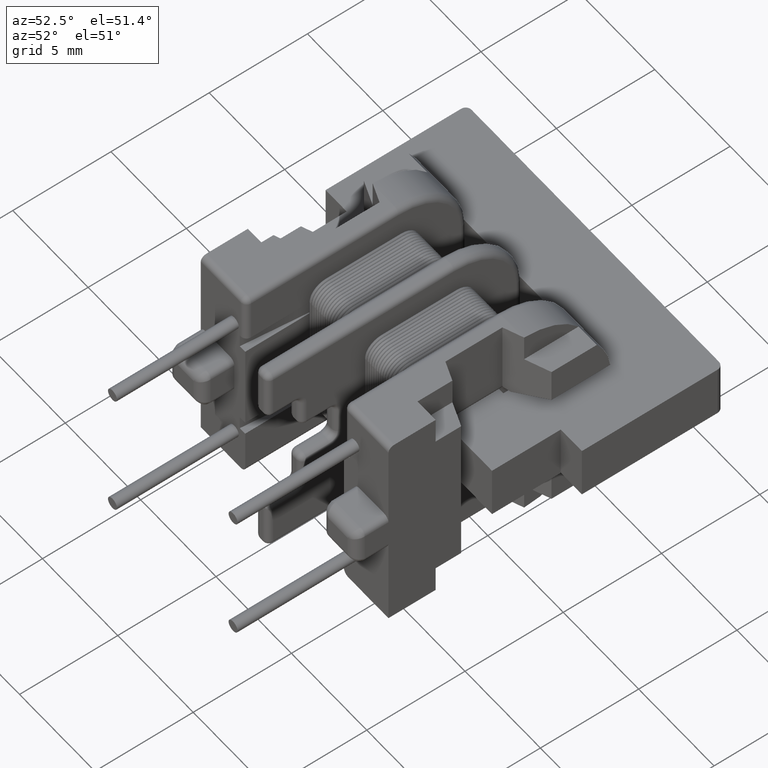
[diagram: clean part render]
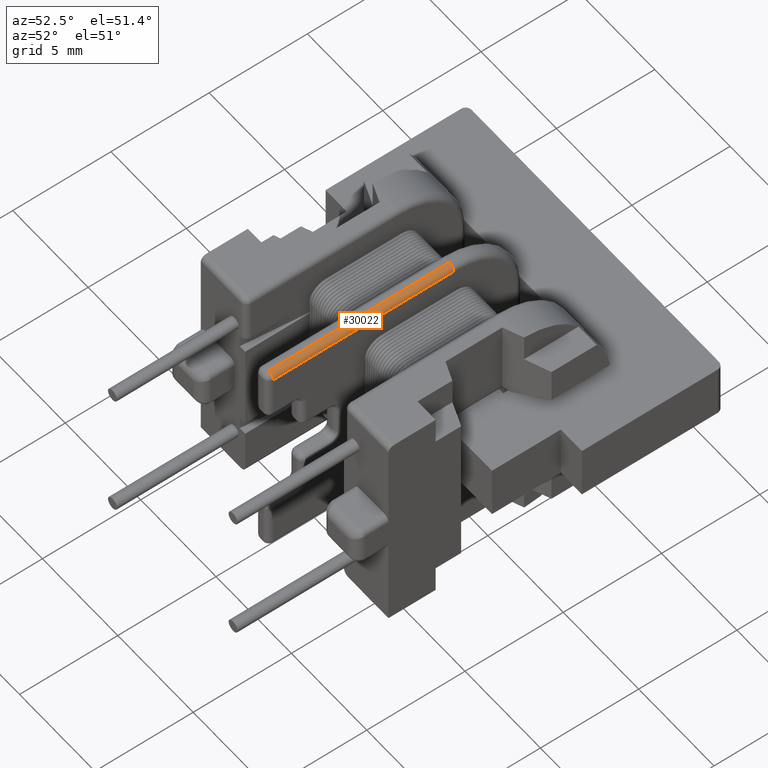
[diagram: same view with one face highlighted and labeled with its STEP entity id]
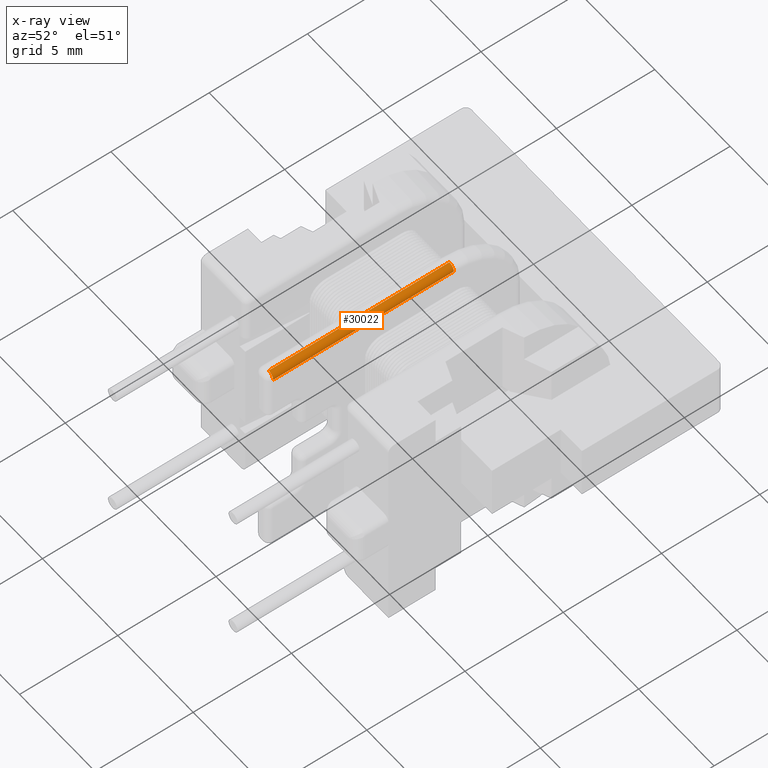
[diagram: x-ray of the same camera — body ghosted, the highlighted face saturated]
A machine part, auxiliary view. The second image highlights one B-rep face of the part: STEP entity #30022.
The next image is the same camera in x-ray: the body ghosted, the highlighted face saturated — about 0% of this face is hidden behind the body in this view.
In plain terms, the highlighted cylindrical surface (edge-blend (fillet) strip) has radius 0.3 mm, axis along (-0, 1, 0).
Its self-contained STEP definition (entity closure, byte-faithful):
#1444 = ORIENTED_EDGE ( 'NONE', *, *, #31955, .F. ) ;
#1467 = VERTEX_POINT ( 'NONE', #2672 ) ;
#2672 = CARTESIAN_POINT ( 'NONE',  ( 0.1000000000000000472, -7.399999999999999467, 5.499999999999997335 ) ) ;
#3893 = EDGE_CURVE ( 'NONE', #33738, #35253, #38652, .T. ) ;
#4317 = CARTESIAN_POINT ( 'NONE',  ( 0.1000000000000000472, 1.800000000000000044, 5.199999999999998401 ) ) ;
#4455 = DIRECTION ( 'NONE',  ( 0.0000000000000000000, 1.000000000000000000, 0.0000000000000000000 ) ) ;
#4801 = ORIENTED_EDGE ( 'NONE', *, *, #23649, .T. ) ;
#5025 = DIRECTION ( 'NONE',  ( 0.0000000000000000000, 1.000000000000000000, -2.891205793294679805E-15 ) ) ;
#5520 = CARTESIAN_POINT ( 'NONE',  ( 0.4000000000000000222, -7.400000000000000355, 5.199999999999997513 ) ) ;
#6828 = CYLINDRICAL_SURFACE ( 'NONE', #10149, 0.2999999999999999334 ) ;
#8553 = CARTESIAN_POINT ( 'NONE',  ( 0.1000000000000000472, 1.800000000000000044, 5.499999999999998224 ) ) ;
#10149 = AXIS2_PLACEMENT_3D ( 'NONE', #17569, #18676, #36352 ) ;
#10347 = DIRECTION ( 'NONE',  ( 0.0000000000000000000, 0.0000000000000000000, 1.000000000000000000 ) ) ;
#11214 = VECTOR ( 'NONE', #11821, 1000.000000000000000 ) ;
#11821 = DIRECTION ( 'NONE',  ( -0.0000000000000000000, 1.000000000000000000, 1.495451272393799542E-16 ) ) ;
#13174 = AXIS2_PLACEMENT_3D ( 'NONE', #4317, #4455, #10347 ) ;
#13244 = EDGE_LOOP ( 'NONE', ( #4801, #1444, #17399, #25990 ) ) ;
#17399 = ORIENTED_EDGE ( 'NONE', *, *, #3893, .F. ) ;
#17559 = DIRECTION ( 'NONE',  ( 0.0000000000000000000, -1.000000000000000000, -1.495451272393799542E-16 ) ) ;
#17569 = CARTESIAN_POINT ( 'NONE',  ( 0.1000000000000000472, -7.776346616447755056E-16, 5.199999999999998401 ) ) ;
#17998 = CIRCLE ( 'NONE', #32959, 0.2999999999999999334 ) ;
#18676 = DIRECTION ( 'NONE',  ( -0.0000000000000000000, 1.000000000000000000, 1.495451272393799542E-16 ) ) ;
#19572 = LINE ( 'NONE', #8553, #11214 ) ;
#20766 = CARTESIAN_POINT ( 'NONE',  ( 0.4000000000000000222, 1.800000000000000044, 5.199999999999999289 ) ) ;
#23447 = DIRECTION ( 'NONE',  ( 0.0000000000000000000, 2.891205793294679017E-15, 1.000000000000000000 ) ) ;
#23474 = LINE ( 'NONE', #35318, #38040 ) ;
#23649 = EDGE_CURVE ( 'NONE', #1467, #23839, #17998, .T. ) ;
#23839 = VERTEX_POINT ( 'NONE', #5520 ) ;
#25990 = ORIENTED_EDGE ( 'NONE', *, *, #29428, .F. ) ;
#29096 = CARTESIAN_POINT ( 'NONE',  ( 0.1000000000000000472, -7.400000000000000355, 5.199999999999997513 ) ) ;
#29322 = FACE_OUTER_BOUND ( 'NONE', #13244, .T. ) ;
#29428 = EDGE_CURVE ( 'NONE', #1467, #33738, #19572, .T. ) ;
#30022 = ADVANCED_FACE ( 'NONE', ( #29322 ), #6828, .T. ) ;
#31955 = EDGE_CURVE ( 'NONE', #35253, #23839, #23474, .T. ) ;
#32959 = AXIS2_PLACEMENT_3D ( 'NONE', #29096, #5025, #23447 ) ;
#33738 = VERTEX_POINT ( 'NONE', #36830 ) ;
#35253 = VERTEX_POINT ( 'NONE', #20766 ) ;
#35318 = CARTESIAN_POINT ( 'NONE',  ( 0.4000000000000000222, -7.399999999999999467, 5.199999999999997513 ) ) ;
#36352 = DIRECTION ( 'NONE',  ( 0.0000000000000000000, -1.495451272393799296E-16, 1.000000000000000000 ) ) ;
#36830 = CARTESIAN_POINT ( 'NONE',  ( 0.1000000000000000472, 1.800000000000000044, 5.499999999999998224 ) ) ;
#38040 = VECTOR ( 'NONE', #17559, 1000.000000000000000 ) ;
#38652 = CIRCLE ( 'NONE', #13174, 0.2999999999999999334 ) ;